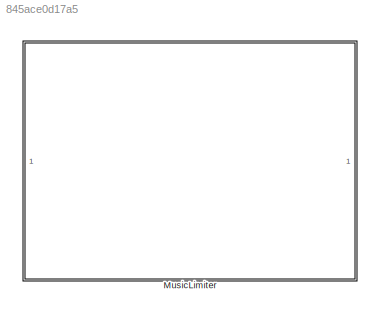
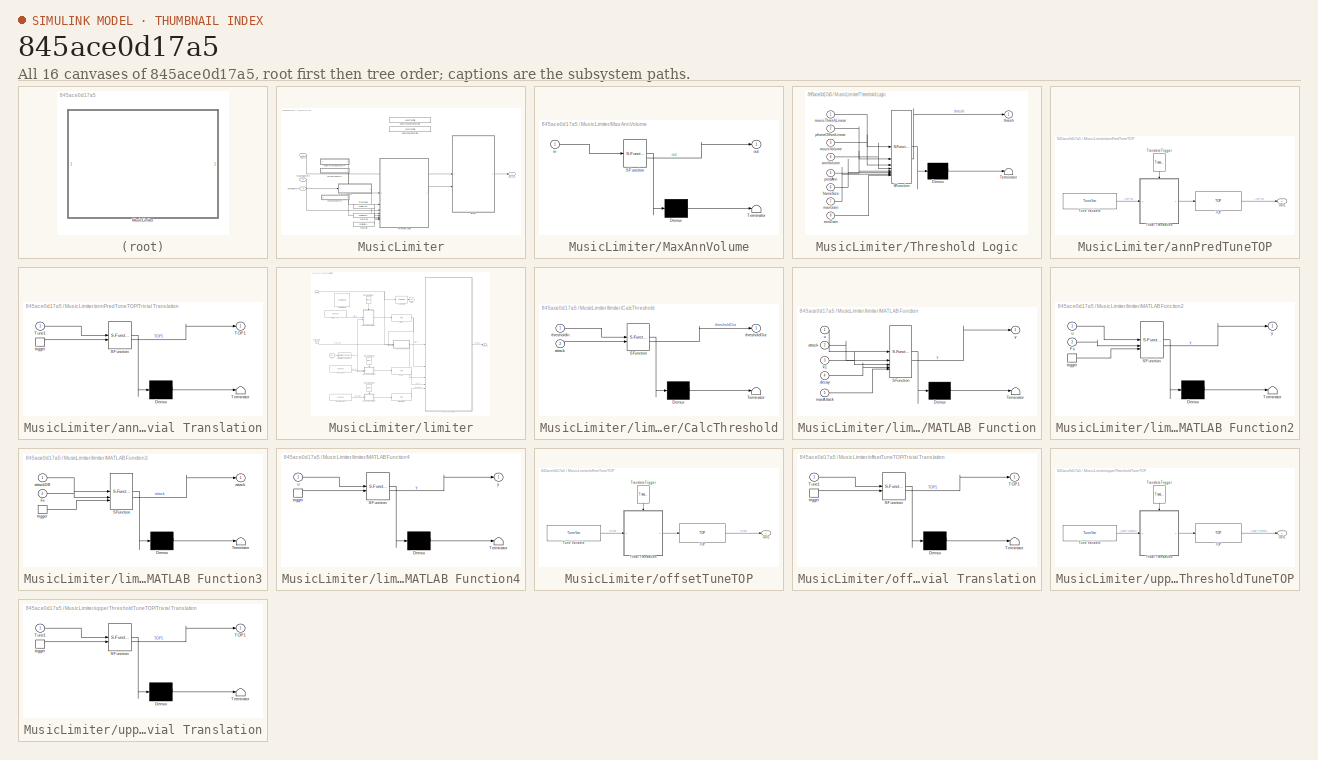
[diagram: thumbnail index - all 16 canvases of the model, root first then tree order]
MODEL slx_845ace0d17a5
KIND library
CONFIG AbsTol = auto
CONFIG EnableMultiTasking = off
CONFIG FixedStep = auto
CONFIG MaxStep = auto
CONFIG MinStep = auto
CONFIG RelTol = 1e-3
CONFIG SampleTimeConstraint = Unconstrained
CONFIG SolverName = VariableStepAuto
CONFIG StartTime = 0.0
CONFIG StopTime = 10.0
BLOCK [SubSystem] MusicLimiter
BLOCK [Constant] MusicLimiter/FrameSize
  Value = Config.FrameSize
BLOCK [Reference] MusicLimiter/HandyConfigTextFile  REF=HandyTextFile/HandyTextFile
  SourceBlock = HandyTextFile/HandyTextFile
  SourceProductName = Bose Talaria
  SourceType = Talaria Handy Text File
BLOCK [Reference] MusicLimiter/HandyTuneConfigTextFile  REF=HandyTextFile/HandyTextFile
  SourceBlock = HandyTextFile/HandyTextFile
  SourceProductName = Bose Talaria
  SourceType = Talaria Handy Text File
BLOCK [SubSystem] MusicLimiter/MaxAnnVolume
  ErrorFcn = Stateflow.Translate.translate
  PermitHierarchicalResolution = ExplicitOnly
  SFBlockType = MATLAB Function
BLOCK [Demux] MusicLimiter/MaxAnnVolume/ Demux 
  Outputs = 1
BLOCK [S-Function] MusicLimiter/MaxAnnVolume/ SFunction 
  EnableBusSupport = off
  FunctionName = sf_sfun
  PortCounts = [1 2]
  SFcnIsStateOwnerBlock = off
  SFunctionDeploymentMode = off
  Tag = Stateflow S-Function 1
BLOCK [Terminator] MusicLimiter/MaxAnnVolume/ Terminator 
BLOCK [Inport] MusicLimiter/MaxAnnVolume/in
BLOCK [Outport] MusicLimiter/MaxAnnVolume/out
BLOCK [Constant] MusicLimiter/MaxGain
  Value = Config.MaxGain
BLOCK [Constant] MusicLimiter/MinGain
  Value = Config.MinGain
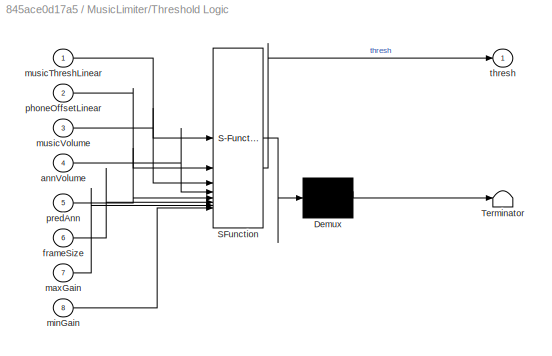
BLOCK [SubSystem] MusicLimiter/Threshold Logic
  ErrorFcn = Stateflow.Translate.translate
  PermitHierarchicalResolution = ExplicitOnly
  SFBlockType = MATLAB Function
BLOCK [Demux] MusicLimiter/Threshold Logic/ Demux 
  Outputs = 1
BLOCK [S-Function] MusicLimiter/Threshold Logic/ SFunction 
  EnableBusSupport = off
  FunctionName = sf_sfun
  PortCounts = [8 2]
  SFcnIsStateOwnerBlock = off
  SFunctionDeploymentMode = off
  Tag = Stateflow S-Function 25
BLOCK [Terminator] MusicLimiter/Threshold Logic/ Terminator 
BLOCK [Inport] MusicLimiter/Threshold Logic/annVolume
  Port = 4
BLOCK [Inport] MusicLimiter/Threshold Logic/frameSize
  Port = 6
BLOCK [Inport] MusicLimiter/Threshold Logic/maxGain
  Port = 7
BLOCK [Inport] MusicLimiter/Threshold Logic/minGain
  Port = 8
BLOCK [Inport] MusicLimiter/Threshold Logic/musicThreshLinear
BLOCK [Inport] MusicLimiter/Threshold Logic/musicVolume
  Port = 3
BLOCK [Inport] MusicLimiter/Threshold Logic/phoneOffsetLinear
  Port = 2
BLOCK [Inport] MusicLimiter/Threshold Logic/predAnn
  Port = 5
BLOCK [Outport] MusicLimiter/Threshold Logic/thresh
BLOCK [SubSystem] MusicLimiter/annPredTuneTOP
BLOCK [Outport] MusicLimiter/annPredTuneTOP/Out1
  VectorParamsAs1DForOutWhenUnconnected = off
BLOCK [Reference] MusicLimiter/annPredTuneTOP/TOP  REF=TOP/TOP
  SourceBlock = TOP/TOP
  SourceProductName = Bose Talaria
  SourceType = Talaria Target Overlay Parameter
BLOCK [Reference] MusicLimiter/annPredTuneTOP/TranslateTrigger  REF=TuneVar/TranslateTrigger
  NameLocation = left
  SourceBlock = TuneVar/TranslateTrigger
  SourceProductName = Bose Talaria
  SourceType = Talaria Translate Trigger
BLOCK [SubSystem] MusicLimiter/annPredTuneTOP/Trivial Translation
  ErrorFcn = Stateflow.Translate.translate
  PermitHierarchicalResolution = ExplicitOnly
  SFBlockType = MATLAB Function
  TreatAsAtomicUnit = on
BLOCK [Demux] MusicLimiter/annPredTuneTOP/Trivial Translation/ Demux 
  Outputs = 1
BLOCK [S-Function] MusicLimiter/annPredTuneTOP/Trivial Translation/ SFunction 
  EnableBusSupport = off
  FunctionName = sf_sfun
  PortCounts = [2 2]
  SFcnIsStateOwnerBlock = off
  SFunctionDeploymentMode = off
  Tag = Stateflow S-Function 5
BLOCK [Terminator] MusicLimiter/annPredTuneTOP/Trivial Translation/ Terminator 
BLOCK [Outport] MusicLimiter/annPredTuneTOP/Trivial Translation/TOP1
  VectorParamsAs1DForOutWhenUnconnected = off
BLOCK [Inport] MusicLimiter/annPredTuneTOP/Trivial Translation/Tune1
BLOCK [TriggerPort] MusicLimiter/annPredTuneTOP/Trivial Translation/trigger
  ShowOutputPort = on
  StatesWhenEnabling = held
  TriggerType = function-call
  VariantControl = Variant
BLOCK [Reference] MusicLimiter/annPredTuneTOP/Tune Variable  REF=TuneVar/TuneVar
  SourceBlock = TuneVar/TuneVar
  SourceProductName = Bose Talaria
  SourceType = Talaria Tune Variable
BLOCK [Inport] MusicLimiter/annVolumeIn
  Port = 3
BLOCK [Inport] MusicLimiter/entIn
BLOCK [Outport] MusicLimiter/entOut
  VectorParamsAs1DForOutWhenUnconnected = off
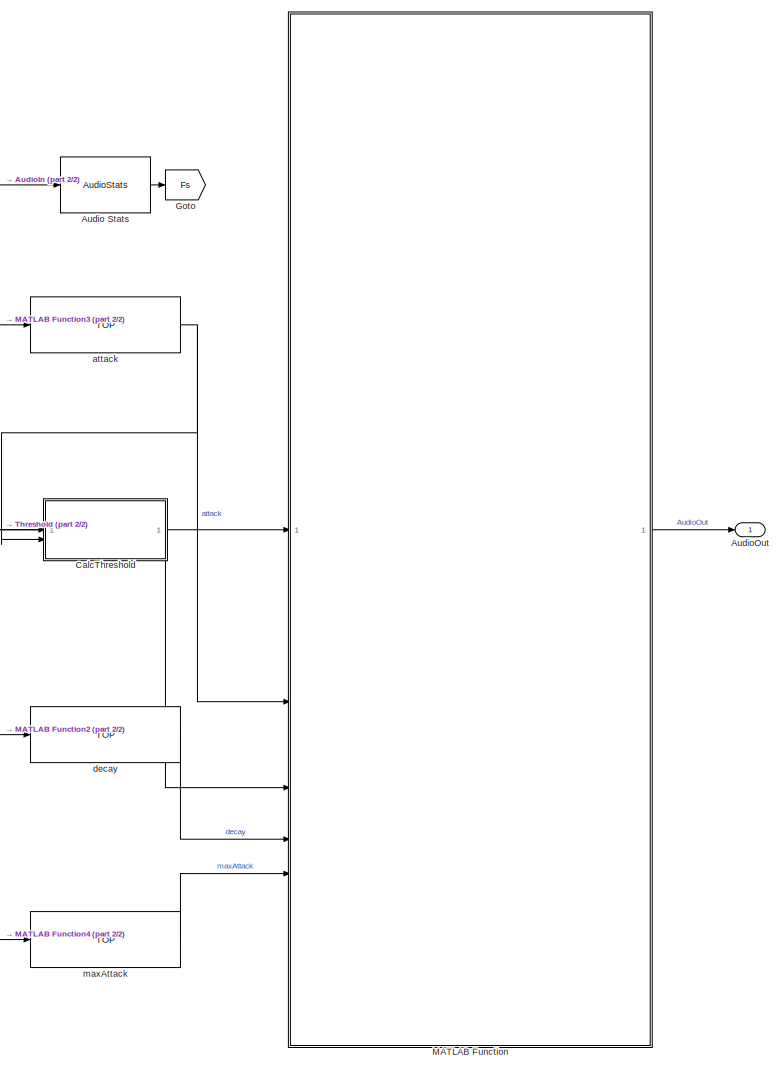
[diagram: MusicLimiter/limiter - part 1/2, right side, full height]
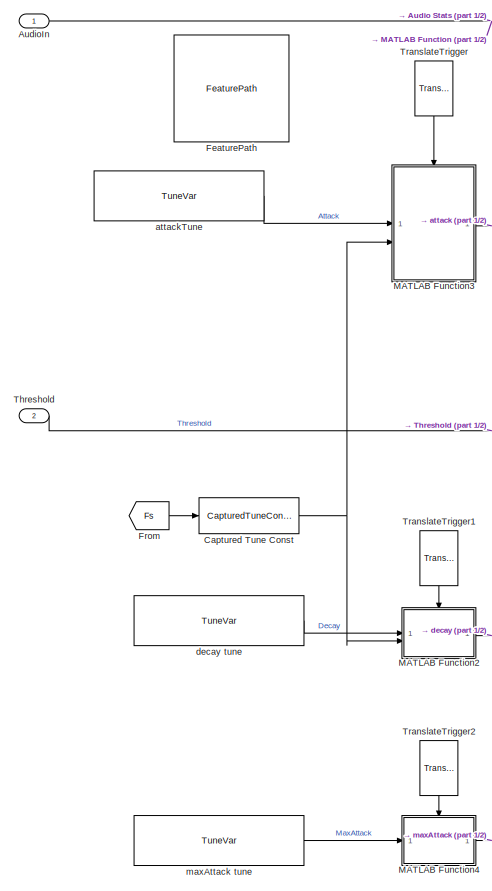
[diagram: MusicLimiter/limiter - part 2/2, left side, full height]
BLOCK [SubSystem] MusicLimiter/limiter
  ShowPortLabels = SignalName
BLOCK [Reference] MusicLimiter/limiter/Audio Stats  REF=AudioStats/AudioStats
  SourceBlock = AudioStats/AudioStats
  SourceProductName = Bose Talaria
  SourceType = Talaria Audio Statistics
BLOCK [Inport] MusicLimiter/limiter/AudioIn
BLOCK [Outport] MusicLimiter/limiter/AudioOut
  VectorParamsAs1DForOutWhenUnconnected = off
BLOCK [SubSystem] MusicLimiter/limiter/CalcThreshold
  ErrorFcn = Stateflow.Translate.translate
  PermitHierarchicalResolution = ExplicitOnly
  SFBlockType = MATLAB Function
  TreatAsAtomicUnit = on
BLOCK [Demux] MusicLimiter/limiter/CalcThreshold/ Demux 
  Outputs = 1
BLOCK [S-Function] MusicLimiter/limiter/CalcThreshold/ SFunction 
  EnableBusSupport = off
  FunctionName = sf_sfun
  PortCounts = [2 2]
  SFcnIsStateOwnerBlock = off
  SFunctionDeploymentMode = off
  Tag = Stateflow S-Function 12
BLOCK [Terminator] MusicLimiter/limiter/CalcThreshold/ Terminator 
BLOCK [Inport] MusicLimiter/limiter/CalcThreshold/attack
  Port = 2
BLOCK [Inport] MusicLimiter/limiter/CalcThreshold/thresholdIn
BLOCK [Outport] MusicLimiter/limiter/CalcThreshold/thresholdOut
BLOCK [Reference] MusicLimiter/limiter/Captured Tune Const  REF=TuneVar/CapturedTuneConst
  SourceBlock = TuneVar/CapturedTuneConst
  SourceProductName = Bose Talaria
  SourceType = Talaria Captured Constant
BLOCK [Reference] MusicLimiter/limiter/FeaturePath  REF=FeaturePath/FeaturePath
  SourceBlock = FeaturePath/FeaturePath
  SourceProductName = Bose Talaria
  SourceType = Talaria Feature Path
BLOCK [From] MusicLimiter/limiter/From
  GotoTag = Fs
BLOCK [Goto] MusicLimiter/limiter/Goto
  GotoTag = Fs
BLOCK [SubSystem] MusicLimiter/limiter/MATLAB Function
  ErrorFcn = Stateflow.Translate.translate
  PermitHierarchicalResolution = ExplicitOnly
  SFBlockType = MATLAB Function
  TreatAsAtomicUnit = on
BLOCK [Demux] MusicLimiter/limiter/MATLAB Function/ Demux 
  Outputs = 1
BLOCK [S-Function] MusicLimiter/limiter/MATLAB Function/ SFunction 
  EnableBusSupport = off
  FunctionName = sf_sfun
  PortCounts = [5 2]
  SFcnIsStateOwnerBlock = off
  SFunctionDeploymentMode = off
  Tag = Stateflow S-Function 3
BLOCK [Terminator] MusicLimiter/limiter/MATLAB Function/ Terminator 
BLOCK [Inport] MusicLimiter/limiter/MATLAB Function/attack
  Port = 2
BLOCK [Inport] MusicLimiter/limiter/MATLAB Function/decay
  Port = 4
BLOCK [Inport] MusicLimiter/limiter/MATLAB Function/k1
  Port = 3
BLOCK [Inport] MusicLimiter/limiter/MATLAB Function/maxAttack
  Port = 5
BLOCK [Inport] MusicLimiter/limiter/MATLAB Function/u
BLOCK [Outport] MusicLimiter/limiter/MATLAB Function/y
  VectorParamsAs1DForOutWhenUnconnected = off
BLOCK [SubSystem] MusicLimiter/limiter/MATLAB Function2
  ErrorFcn = Stateflow.Translate.translate
  PermitHierarchicalResolution = ExplicitOnly
  SFBlockType = MATLAB Function
  TreatAsAtomicUnit = on
BLOCK [Demux] MusicLimiter/limiter/MATLAB Function2/ Demux 
  Outputs = 1
BLOCK [S-Function] MusicLimiter/limiter/MATLAB Function2/ SFunction 
  EnableBusSupport = off
  FunctionName = sf_sfun
  PortCounts = [3 2]
  SFcnIsStateOwnerBlock = off
  SFunctionDeploymentMode = off
  Tag = Stateflow S-Function 7
BLOCK [Terminator] MusicLimiter/limiter/MATLAB Function2/ Terminator 
BLOCK [Inport] MusicLimiter/limiter/MATLAB Function2/Fs
  Port = 2
BLOCK [TriggerPort] MusicLimiter/limiter/MATLAB Function2/trigger
  ShowOutputPort = on
  StatesWhenEnabling = held
  TriggerType = function-call
  VariantControl = (inherit)
BLOCK [Inport] MusicLimiter/limiter/MATLAB Function2/u
BLOCK [Outport] MusicLimiter/limiter/MATLAB Function2/y
  VectorParamsAs1DForOutWhenUnconnected = off
BLOCK [SubSystem] MusicLimiter/limiter/MATLAB Function3
  ErrorFcn = Stateflow.Translate.translate
  PermitHierarchicalResolution = ExplicitOnly
  SFBlockType = MATLAB Function
  TreatAsAtomicUnit = on
BLOCK [Demux] MusicLimiter/limiter/MATLAB Function3/ Demux 
  Outputs = 1
BLOCK [S-Function] MusicLimiter/limiter/MATLAB Function3/ SFunction 
  EnableBusSupport = off
  FunctionName = sf_sfun
  PortCounts = [3 2]
  SFcnIsStateOwnerBlock = off
  SFunctionDeploymentMode = off
  Tag = Stateflow S-Function 8
BLOCK [Terminator] MusicLimiter/limiter/MATLAB Function3/ Terminator 
BLOCK [Inport] MusicLimiter/limiter/MATLAB Function3/Fs
  Port = 2
BLOCK [Outport] MusicLimiter/limiter/MATLAB Function3/attack
  VectorParamsAs1DForOutWhenUnconnected = off
BLOCK [Inport] MusicLimiter/limiter/MATLAB Function3/attackDB
BLOCK [TriggerPort] MusicLimiter/limiter/MATLAB Function3/trigger
  ShowOutputPort = on
  StatesWhenEnabling = held
  TriggerType = function-call
  VariantControl = (inherit)
BLOCK [SubSystem] MusicLimiter/limiter/MATLAB Function4
  ErrorFcn = Stateflow.Translate.translate
  PermitHierarchicalResolution = ExplicitOnly
  SFBlockType = MATLAB Function
  TreatAsAtomicUnit = on
BLOCK [Demux] MusicLimiter/limiter/MATLAB Function4/ Demux 
  Outputs = 1
BLOCK [S-Function] MusicLimiter/limiter/MATLAB Function4/ SFunction 
  EnableBusSupport = off
  FunctionName = sf_sfun
  PortCounts = [2 2]
  SFcnIsStateOwnerBlock = off
  SFunctionDeploymentMode = off
  Tag = Stateflow S-Function 9
BLOCK [Terminator] MusicLimiter/limiter/MATLAB Function4/ Terminator 
BLOCK [TriggerPort] MusicLimiter/limiter/MATLAB Function4/trigger
  ShowOutputPort = on
  StatesWhenEnabling = held
  TriggerType = function-call
  VariantControl = (inherit)
BLOCK [Inport] MusicLimiter/limiter/MATLAB Function4/u
BLOCK [Outport] MusicLimiter/limiter/MATLAB Function4/y
  VectorParamsAs1DForOutWhenUnconnected = off
BLOCK [Inport] MusicLimiter/limiter/Threshold
  Port = 2
BLOCK [Reference] MusicLimiter/limiter/TranslateTrigger  REF=TuneVar/TranslateTrigger
  NameLocation = left
  SourceBlock = TuneVar/TranslateTrigger
  SourceProductName = Bose Talaria
  SourceType = Talaria Translate Trigger
BLOCK [Reference] MusicLimiter/limiter/TranslateTrigger1  REF=TuneVar/TranslateTrigger
  NameLocation = left
  SourceBlock = TuneVar/TranslateTrigger
  SourceProductName = Bose Talaria
  SourceType = Talaria Translate Trigger
BLOCK [Reference] MusicLimiter/limiter/TranslateTrigger2  REF=TuneVar/TranslateTrigger
  NameLocation = left
  SourceBlock = TuneVar/TranslateTrigger
  SourceProductName = Bose Talaria
  SourceType = Talaria Translate Trigger
BLOCK [Reference] MusicLimiter/limiter/attack  REF=TOP/TOP
  SourceBlock = TOP/TOP
  SourceProductName = Bose Talaria
  SourceType = Talaria Target Overlay Parameter
BLOCK [Reference] MusicLimiter/limiter/attackTune  REF=TuneVar/TuneVar
  SourceBlock = TuneVar/TuneVar
  SourceProductName = Bose Talaria
  SourceType = Talaria Tune Variable
BLOCK [Reference] MusicLimiter/limiter/decay  REF=TOP/TOP
  SourceBlock = TOP/TOP
  SourceProductName = Bose Talaria
  SourceType = Talaria Target Overlay Parameter
BLOCK [Reference] MusicLimiter/limiter/decay tune  REF=TuneVar/TuneVar
  SourceBlock = TuneVar/TuneVar
  SourceProductName = Bose Talaria
  SourceType = Talaria Tune Variable
BLOCK [Reference] MusicLimiter/limiter/maxAttack  REF=TOP/TOP
  SourceBlock = TOP/TOP
  SourceProductName = Bose Talaria
  SourceType = Talaria Target Overlay Parameter
BLOCK [Reference] MusicLimiter/limiter/maxAttack tune  REF=TuneVar/TuneVar
  SourceBlock = TuneVar/TuneVar
  SourceProductName = Bose Talaria
  SourceType = Talaria Tune Variable
BLOCK [Inport] MusicLimiter/musicVolumeIn
  Port = 2
BLOCK [SubSystem] MusicLimiter/offsetTuneTOP
BLOCK [Outport] MusicLimiter/offsetTuneTOP/Out1
  VectorParamsAs1DForOutWhenUnconnected = off
BLOCK [Reference] MusicLimiter/offsetTuneTOP/TOP  REF=TOP/TOP
  SourceBlock = TOP/TOP
  SourceProductName = Bose Talaria
  SourceType = Talaria Target Overlay Parameter
BLOCK [Reference] MusicLimiter/offsetTuneTOP/TranslateTrigger  REF=TuneVar/TranslateTrigger
  NameLocation = left
  SourceBlock = TuneVar/TranslateTrigger
  SourceProductName = Bose Talaria
  SourceType = Talaria Translate Trigger
BLOCK [SubSystem] MusicLimiter/offsetTuneTOP/Trivial Translation
  ErrorFcn = Stateflow.Translate.translate
  PermitHierarchicalResolution = ExplicitOnly
  SFBlockType = MATLAB Function
  TreatAsAtomicUnit = on
BLOCK [Demux] MusicLimiter/offsetTuneTOP/Trivial Translation/ Demux 
  Outputs = 1
BLOCK [S-Function] MusicLimiter/offsetTuneTOP/Trivial Translation/ SFunction 
  EnableBusSupport = off
  FunctionName = sf_sfun
  PortCounts = [2 2]
  SFcnIsStateOwnerBlock = off
  SFunctionDeploymentMode = off
  Tag = Stateflow S-Function 2
BLOCK [Terminator] MusicLimiter/offsetTuneTOP/Trivial Translation/ Terminator 
BLOCK [Outport] MusicLimiter/offsetTuneTOP/Trivial Translation/TOP1
  VectorParamsAs1DForOutWhenUnconnected = off
BLOCK [Inport] MusicLimiter/offsetTuneTOP/Trivial Translation/Tune1
BLOCK [TriggerPort] MusicLimiter/offsetTuneTOP/Trivial Translation/trigger
  ShowOutputPort = on
  StatesWhenEnabling = held
  TriggerType = function-call
  VariantControl = Variant
BLOCK [Reference] MusicLimiter/offsetTuneTOP/Tune Variable  REF=TuneVar/TuneVar
  SourceBlock = TuneVar/TuneVar
  SourceProductName = Bose Talaria
  SourceType = Talaria Tune Variable
BLOCK [SubSystem] MusicLimiter/upperThresholdTuneTOP
BLOCK [Outport] MusicLimiter/upperThresholdTuneTOP/Out1
  VectorParamsAs1DForOutWhenUnconnected = off
BLOCK [Reference] MusicLimiter/upperThresholdTuneTOP/TOP  REF=TOP/TOP
  SourceBlock = TOP/TOP
  SourceProductName = Bose Talaria
  SourceType = Talaria Target Overlay Parameter
BLOCK [Reference] MusicLimiter/upperThresholdTuneTOP/TranslateTrigger  REF=TuneVar/TranslateTrigger
  NameLocation = left
  SourceBlock = TuneVar/TranslateTrigger
  SourceProductName = Bose Talaria
  SourceType = Talaria Translate Trigger
BLOCK [SubSystem] MusicLimiter/upperThresholdTuneTOP/Trivial Translation
  ErrorFcn = Stateflow.Translate.translate
  PermitHierarchicalResolution = ExplicitOnly
  SFBlockType = MATLAB Function
  TreatAsAtomicUnit = on
BLOCK [Demux] MusicLimiter/upperThresholdTuneTOP/Trivial Translation/ Demux 
  Outputs = 1
BLOCK [S-Function] MusicLimiter/upperThresholdTuneTOP/Trivial Translation/ SFunction 
  EnableBusSupport = off
  FunctionName = sf_sfun
  PortCounts = [2 2]
  SFcnIsStateOwnerBlock = off
  SFunctionDeploymentMode = off
  Tag = Stateflow S-Function 16
BLOCK [Terminator] MusicLimiter/upperThresholdTuneTOP/Trivial Translation/ Terminator 
BLOCK [Outport] MusicLimiter/upperThresholdTuneTOP/Trivial Translation/TOP1
  VectorParamsAs1DForOutWhenUnconnected = off
BLOCK [Inport] MusicLimiter/upperThresholdTuneTOP/Trivial Translation/Tune1
BLOCK [TriggerPort] MusicLimiter/upperThresholdTuneTOP/Trivial Translation/trigger
  ShowOutputPort = on
  StatesWhenEnabling = held
  TriggerType = function-call
  VariantControl = Variant
BLOCK [Reference] MusicLimiter/upperThresholdTuneTOP/Tune Variable  REF=TuneVar/TuneVar
  SourceBlock = TuneVar/TuneVar
  SourceProductName = Bose Talaria
  SourceType = Talaria Tune Variable
LINE MusicLimiter/FrameSize:1 -> MusicLimiter/Threshold Logic:6
LINE MusicLimiter/MaxAnnVolume:1 -> MusicLimiter/Threshold Logic:4
LINE MusicLimiter/MaxGain:1 -> MusicLimiter/Threshold Logic:7
LINE MusicLimiter/MinGain:1 -> MusicLimiter/Threshold Logic:8
LINE MusicLimiter/Threshold Logic:1 -> MusicLimiter/limiter:2
LINE MusicLimiter/annPredTuneTOP/TOP:1 -> MusicLimiter/annPredTuneTOP/Out1:1
LINE MusicLimiter/annPredTuneTOP/TranslateTrigger:1 -> MusicLimiter/annPredTuneTOP/Trivial Translation:trigger
LINE MusicLimiter/annPredTuneTOP/Trivial Translation:1 -> MusicLimiter/annPredTuneTOP/TOP:1
LINE MusicLimiter/annPredTuneTOP/Tune Variable:1 -> MusicLimiter/annPredTuneTOP/Trivial Translation:1
LINE MusicLimiter/annPredTuneTOP:1 -> MusicLimiter/Threshold Logic:5
LINE MusicLimiter/annVolumeIn:1 -> MusicLimiter/MaxAnnVolume:1
LINE MusicLimiter/entIn:1 -> MusicLimiter/limiter:1
LINE MusicLimiter/limiter/Audio Stats:1 -> MusicLimiter/limiter/Goto:1
NET MusicLimiter/limiter/AudioIn:1 -> MusicLimiter/limiter/Audio Stats:1, MusicLimiter/limiter/MATLAB Function:1
LINE MusicLimiter/limiter/CalcThreshold:1 -> MusicLimiter/limiter/MATLAB Function:3
NET MusicLimiter/limiter/Captured Tune Const:1 -> MusicLimiter/limiter/MATLAB Function2:2, MusicLimiter/limiter/MATLAB Function3:2
LINE MusicLimiter/limiter/From:1 -> MusicLimiter/limiter/Captured Tune Const:1
LINE MusicLimiter/limiter/MATLAB Function2:1 -> MusicLimiter/limiter/decay:1
LINE MusicLimiter/limiter/MATLAB Function3:1 -> MusicLimiter/limiter/attack:1
LINE MusicLimiter/limiter/MATLAB Function4:1 -> MusicLimiter/limiter/maxAttack:1
LINE MusicLimiter/limiter/MATLAB Function:1 -> MusicLimiter/limiter/AudioOut:1
LINE MusicLimiter/limiter/Threshold:1 -> MusicLimiter/limiter/CalcThreshold:1
LINE MusicLimiter/limiter/TranslateTrigger1:1 -> MusicLimiter/limiter/MATLAB Function2:trigger
LINE MusicLimiter/limiter/TranslateTrigger2:1 -> MusicLimiter/limiter/MATLAB Function4:trigger
LINE MusicLimiter/limiter/TranslateTrigger:1 -> MusicLimiter/limiter/MATLAB Function3:trigger
NET MusicLimiter/limiter/attack:1 -> MusicLimiter/limiter/CalcThreshold:2, MusicLimiter/limiter/MATLAB Function:2
LINE MusicLimiter/limiter/attackTune:1 -> MusicLimiter/limiter/MATLAB Function3:1
LINE MusicLimiter/limiter/decay tune:1 -> MusicLimiter/limiter/MATLAB Function2:1
LINE MusicLimiter/limiter/decay:1 -> MusicLimiter/limiter/MATLAB Function:4
LINE MusicLimiter/limiter/maxAttack tune:1 -> MusicLimiter/limiter/MATLAB Function4:1
LINE MusicLimiter/limiter/maxAttack:1 -> MusicLimiter/limiter/MATLAB Function:5
LINE MusicLimiter/limiter:1 -> MusicLimiter/entOut:1
LINE MusicLimiter/musicVolumeIn:1 -> MusicLimiter/Threshold Logic:3
LINE MusicLimiter/offsetTuneTOP/TOP:1 -> MusicLimiter/offsetTuneTOP/Out1:1
LINE MusicLimiter/offsetTuneTOP/TranslateTrigger:1 -> MusicLimiter/offsetTuneTOP/Trivial Translation:trigger
LINE MusicLimiter/offsetTuneTOP/Trivial Translation:1 -> MusicLimiter/offsetTuneTOP/TOP:1
LINE MusicLimiter/offsetTuneTOP/Tune Variable:1 -> MusicLimiter/offsetTuneTOP/Trivial Translation:1
LINE MusicLimiter/offsetTuneTOP:1 -> MusicLimiter/Threshold Logic:2
LINE MusicLimiter/upperThresholdTuneTOP/TOP:1 -> MusicLimiter/upperThresholdTuneTOP/Out1:1
LINE MusicLimiter/upperThresholdTuneTOP/TranslateTrigger:1 -> MusicLimiter/upperThresholdTuneTOP/Trivial Translation:trigger
LINE MusicLimiter/upperThresholdTuneTOP/Trivial Translation:1 -> MusicLimiter/upperThresholdTuneTOP/TOP:1
LINE MusicLimiter/upperThresholdTuneTOP/Tune Variable:1 -> MusicLimiter/upperThresholdTuneTOP/Trivial Translation:1
LINE MusicLimiter/upperThresholdTuneTOP:1 -> MusicLimiter/Threshold Logic:1
note: NET lines group one-source signal fan-out (src -> all destinations, sorted); 1:1 wires keep LINE
CHART MusicLimiter/MaxAnnVolume states=1 transitions=1
  STATE_LABEL 'eML_blk_kernel()'
  STATE_LABEL 'SCRIPT:\nfunction out = max_ann_volume(in)\n\nout = single(ones(1,32));\nfor idx = 1:size(in, 2)\n    out(idx) = max(in(:, idx));\nend\n'
CHART MusicLimiter/offsetTuneTOP/Trivial Translation states=1 transitions=1
  STATE_LABEL 'eML_blk_kernel()'
  STATE_LABEL 'SCRIPT:\nfunction TOP1  = fcn(Tune1)\n%#codegen\n\n% ----- To access TuneVar maximum size, current size, and current value:\n%   Note: TuneVar signals arrive with exposed variable size information.\n%         The expressions below illustrate for the "Tune1" input argument.\n%\n%   size(Tune1.Value) : the maximum possible size of the Tune1 variable\n%\n%   Tune.Size   : the current size of *valid* data in Tu...<+806ch>'  <repeated x3 — deduplicated; at blocks: Trivial Translation>
CHART MusicLimiter/limiter/MATLAB Function states=1 transitions=1
  STATE_LABEL 'eML_blk_kernel()'
  STATE_LABEL 'SCRIPT:\nfunction y = limiter(u, attack, k1, decay, maxAttack)\n\n% Grab data from input\ny = coder.nullcopy(u);\n[frameSize, channelCount] = size(u);\n\nmaxGain = single(1);\n\npersistent state;\nif isempty(state)\n    state = single(1 * ones(1,channelCount));\nend\n\n% Process the audio\nfor i = 1:channelCount\n    k0 = 1 + attack(i);\n    g1 = state(i);\n\n    for s = 1:frameSize\n        % Compute the gain for th...<+396ch>'
CHART MusicLimiter/annPredTuneTOP/Trivial Translation states=1 transitions=1
  STATE_LABEL 'eML_blk_kernel()'
CHART MusicLimiter/limiter/MATLAB Function2 states=1 transitions=1
  STATE_LABEL 'eML_blk_kernel()'
  STATE_LABEL 'SCRIPT:\nfunction y = fcn(u, Fs)\n\ny = single(undb20(abs(u.Value) / Fs));\n'
CHART MusicLimiter/limiter/MATLAB Function3 states=1 transitions=1
  STATE_LABEL 'eML_blk_kernel()'
  STATE_LABEL 'SCRIPT:\n%function [attack, k1]= fcn(attackDB, threshold, Fs)\nfunction attack = fcn(attackDB, Fs)\nattack = single(1 - undb20(-abs(attackDB.Value) / Fs));\n%k1 = attack ./ single(threshold.Value);\n'
CHART MusicLimiter/limiter/MATLAB Function4 states=1 transitions=1
  STATE_LABEL 'eML_blk_kernel()'
  STATE_LABEL 'SCRIPT:\nfunction y = fcn(u)\n\ny = single(undb20(-abs(u.Value)));\n'
CHART MusicLimiter/limiter/CalcThreshold states=1 transitions=1
  STATE_LABEL 'eML_blk_kernel()'
  STATE_LABEL 'SCRIPT:\nfunction thresholdOut = calcThreshold(thresholdIn, attack)\n\nthresholdOut = attack ./ single(thresholdIn);\n'
CHART MusicLimiter/upperThresholdTuneTOP/Trivial Translation states=1 transitions=1
  STATE_LABEL 'eML_blk_kernel()'
CHART MusicLimiter/Threshold Logic states=1 transitions=1
  STATE_LABEL 'eML_blk_kernel()'
  STATE_LABEL 'SCRIPT:\nfunction thresh  = threshCalc(musicThreshLinear, phoneOffsetLinear, musicVolume, annVolume, predAnn, frameSize, maxGain, minGain)\n% Keep the music limited to the minimum of the specifed music threshold or\n% the current level of the phone minus a tuned offset\n\nthresh = single(annVolume);\n\n% Limit announcement and entertainment volumes to 1 or less\nannVolumeLimited = min(1.0, annVolume);\nmus...<+451ch>'
CHART  states=0 transitions=0
CHART  states=0 transitions=0
CHART  states=0 transitions=0
CHART  states=0 transitions=0
CHART  states=0 transitions=0
CHART  states=0 transitions=0
CHART  states=0 transitions=0
CHART  states=0 transitions=0
CHART  states=0 transitions=0
CHART  states=0 transitions=0
